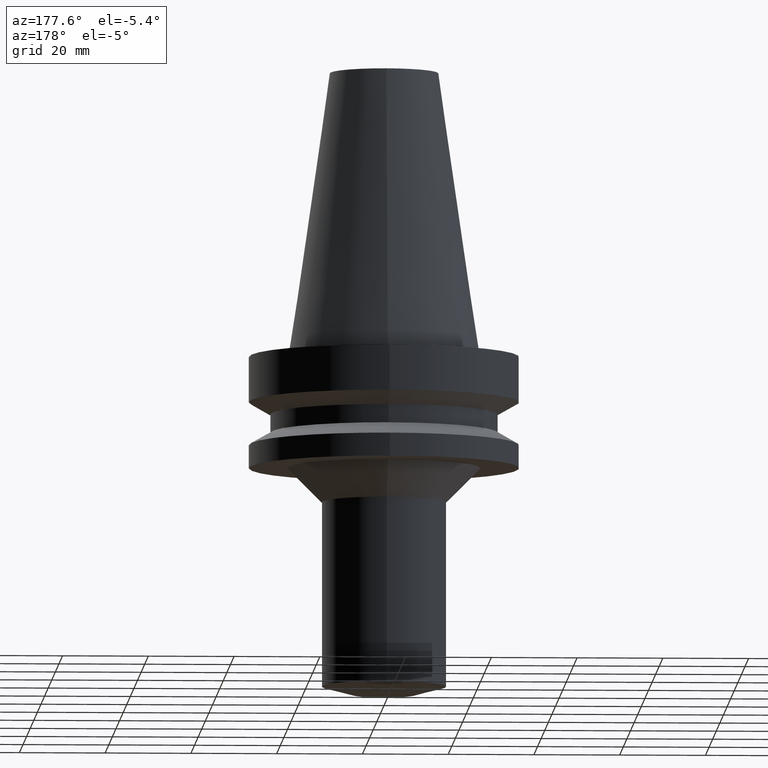
[diagram: clean part render]
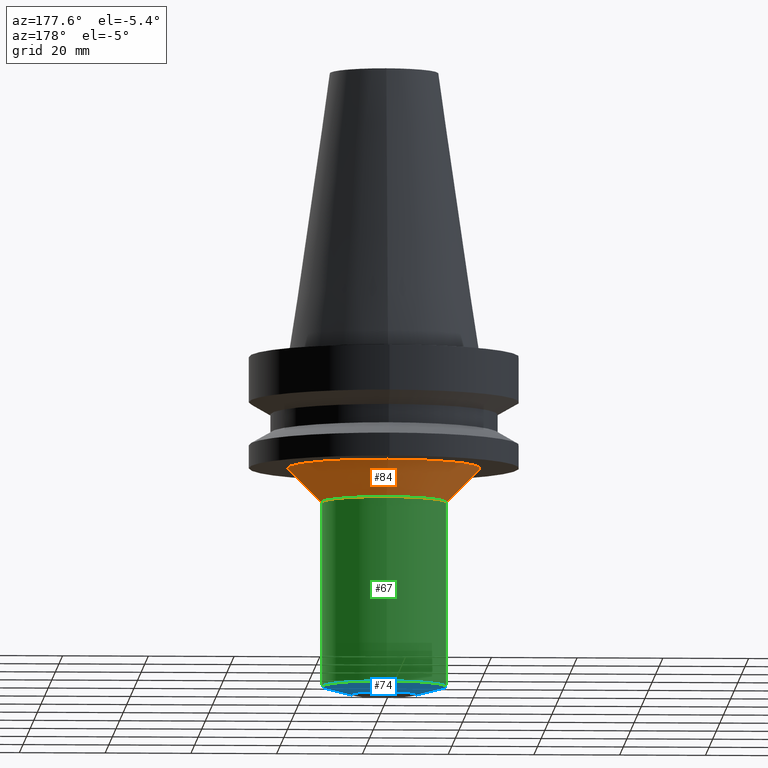
[diagram: same view with three faces highlighted in distinct colors, each labeled with its STEP entity id]
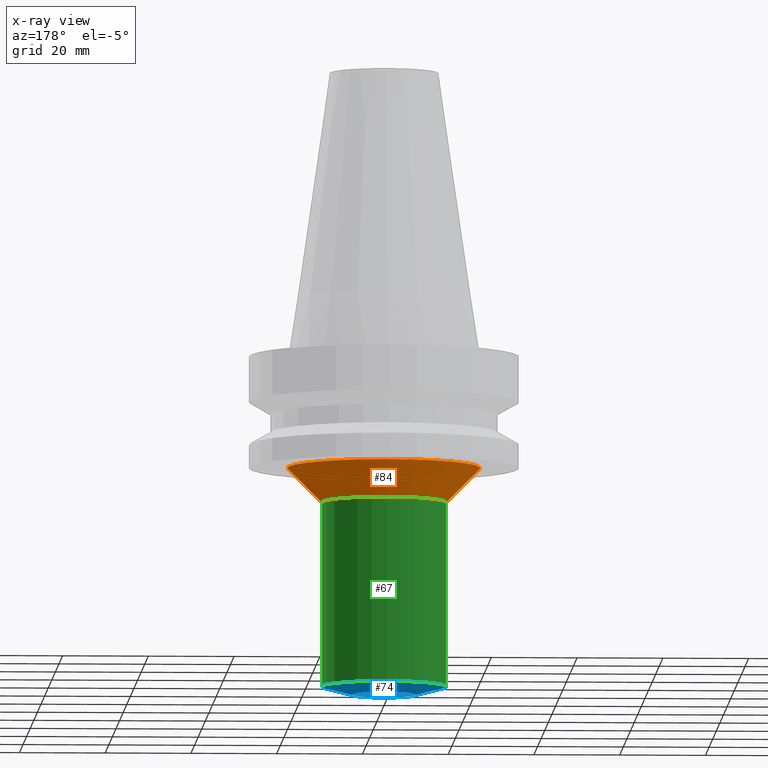
[diagram: x-ray of the same camera — body ghosted, the three highlighted faces saturated]
A machine part, auxiliary view with three faces highlighted in distinct colors.
The next image is the same camera in x-ray (body ghosted, the three faces saturated) — at least one of them is partly hidden behind the body in this view.
Their STEP definitions:

[orange] entity #84 — the highlighted conical surface has half-angle 45 deg.
#84=ADVANCED_FACE('Unnamed[1]',(#189,#190),#191,.T.);
#101=EDGE_CURVE('Unnamed[1]',#215,#215,#216,.T.);
#108=EDGE_CURVE('Unnamed[1]',#226,#226,#227,.T.);
#189=FACE_BOUND('',#318,.T.);
#190=FACE_BOUND('',#319,.T.);
#191=CONICAL_SURFACE('',#320,18.5000000000001,0.785398163397448);
#215=VERTEX_POINT('',#350);
#216=CIRCLE('',#351,22.5000000000002);
#226=VERTEX_POINT('',#364);
#227=CIRCLE('',#365,14.5);
#318=EDGE_LOOP('',(#449));
#319=EDGE_LOOP('',(#450));
#320=AXIS2_PLACEMENT_3D('',#451,#452,#453);
#350=CARTESIAN_POINT('',(1.65327317884891E-015,22.5000000000003,-26.9999999999997));
#351=AXIS2_PLACEMENT_3D('',#476,#477,#478);
#364=CARTESIAN_POINT('',(2.14313189850787E-015,14.5,-35.0));
#365=AXIS2_PLACEMENT_3D('',#488,#489,#490);
#449=ORIENTED_EDGE('',*,*,#108,.F.);
#450=ORIENTED_EDGE('',*,*,#101,.T.);
#451=CARTESIAN_POINT('',(1.89820253867839E-015,1.42431782951301E-014,-30.9999999999999));
#452=DIRECTION('',(-6.12323399573677E-017,6.46048942079378E-016,1.0));
#453=DIRECTION('',(3.47319357197332E-032,1.0,-6.46048942079378E-016));
#476=CARTESIAN_POINT('',(1.65327317884891E-015,1.68273740634477E-014,-26.9999999999997));
#477=DIRECTION('',(6.12323399573677E-017,-6.46048942079378E-016,-1.0));
#478=DIRECTION('',(3.47319357197332E-032,1.0,-6.46048942079378E-016));
#488=CARTESIAN_POINT('',(2.14313189850787E-015,1.16589825268125E-014,-35.0));
#489=DIRECTION('',(6.12323399573677E-017,-6.46048942079378E-016,-1.0));
#490=DIRECTION('',(3.47319357197332E-032,1.0,-6.46048942079378E-016));

[blue] entity #74 — the highlighted conical surface has half-angle 75 deg.
#74=ADVANCED_FACE('Unnamed[1]',(#173,#174),#175,.T.);
#81=EDGE_CURVE('Unnamed[1]',#185,#185,#186,.T.);
#103=EDGE_CURVE('Unnamed[1]',#218,#218,#219,.T.);
#173=FACE_BOUND('',#298,.T.);
#174=FACE_BOUND('',#299,.T.);
#175=CONICAL_SURFACE('',#300,11.0,1.3089969390537);
#185=VERTEX_POINT('',#313);
#186=CIRCLE('',#314,7.50000000000003);
#218=VERTEX_POINT('',#354);
#219=CIRCLE('',#355,14.5);
#298=EDGE_LOOP('',(#431));
#299=EDGE_LOOP('',(#432));
#300=AXIS2_PLACEMENT_3D('',#433,#434,#435);
#313=CARTESIAN_POINT('',(4.89858719658941E-015,7.50000000000001,-80.0));
#314=AXIS2_PLACEMENT_3D('',#445,#446,#447);
#354=CARTESIAN_POINT('',(4.78373710432032E-015,14.5,-78.1243556534169));
#355=AXIS2_PLACEMENT_3D('',#479,#480,#481);
#431=ORIENTED_EDGE('',*,*,#81,.F.);
#432=ORIENTED_EDGE('',*,*,#103,.T.);
#433=CARTESIAN_POINT('',(4.84116215045487E-015,-1.6807340843846E-014,-79.0621778267084));
#434=DIRECTION('',(-6.12323399573677E-017,6.46048942079378E-016,1.0));
#435=DIRECTION('',(3.47319357197332E-032,1.0,-6.46048942079378E-016));
#445=CARTESIAN_POINT('',(4.89858719658941E-015,-1.74132198667595E-014,-80.0));
#446=DIRECTION('',(6.12323399573677E-017,-6.46048942079378E-016,-1.0));
#447=DIRECTION('',(3.47319357197332E-032,1.0,-6.46048942079378E-016));
#479=CARTESIAN_POINT('',(4.78373710432032E-015,-1.62014618209324E-014,-78.1243556534169));
#480=DIRECTION('',(6.12323399573677E-017,-6.46048942079378E-016,-1.0));
#481=DIRECTION('',(3.47319357197332E-032,1.0,-6.46048942079378E-016));

[green] entity #67 — the highlighted cylindrical surface (bore or boss wall) has radius 14.5 mm, axis along (0, -0, -1).
#67=ADVANCED_FACE('Unnamed[1]',(#162,#163),#164,.T.);
#103=EDGE_CURVE('Unnamed[1]',#218,#218,#219,.T.);
#108=EDGE_CURVE('Unnamed[1]',#226,#226,#227,.T.);
#162=FACE_BOUND('',#284,.T.);
#163=FACE_BOUND('',#285,.T.);
#164=CYLINDRICAL_SURFACE('',#286,14.5);
#218=VERTEX_POINT('',#354);
#219=CIRCLE('',#355,14.5);
#226=VERTEX_POINT('',#364);
#227=CIRCLE('',#365,14.5);
#284=EDGE_LOOP('',(#419));
#285=EDGE_LOOP('',(#420));
#286=AXIS2_PLACEMENT_3D('',#421,#422,#423);
#354=CARTESIAN_POINT('',(4.78373710432032E-015,14.5,-78.1243556534169));
#355=AXIS2_PLACEMENT_3D('',#479,#480,#481);
#364=CARTESIAN_POINT('',(2.14313189850787E-015,14.5,-35.0));
#365=AXIS2_PLACEMENT_3D('',#488,#489,#490);
#419=ORIENTED_EDGE('',*,*,#103,.F.);
#420=ORIENTED_EDGE('',*,*,#108,.T.);
#421=CARTESIAN_POINT('',(3.4634345014141E-015,-2.27123964705995E-015,-56.5621778267084));
#422=DIRECTION('',(6.12323399573677E-017,-6.46048942079378E-016,-1.0));
#423=DIRECTION('',(3.47319357197332E-032,1.0,-6.46048942079378E-016));
#479=CARTESIAN_POINT('',(4.78373710432032E-015,-1.62014618209324E-014,-78.1243556534169));
#480=DIRECTION('',(6.12323399573677E-017,-6.46048942079378E-016,-1.0));
#481=DIRECTION('',(3.47319357197332E-032,1.0,-6.46048942079378E-016));
#488=CARTESIAN_POINT('',(2.14313189850787E-015,1.16589825268125E-014,-35.0));
#489=DIRECTION('',(6.12323399573677E-017,-6.46048942079378E-016,-1.0));
#490=DIRECTION('',(3.47319357197332E-032,1.0,-6.46048942079378E-016));